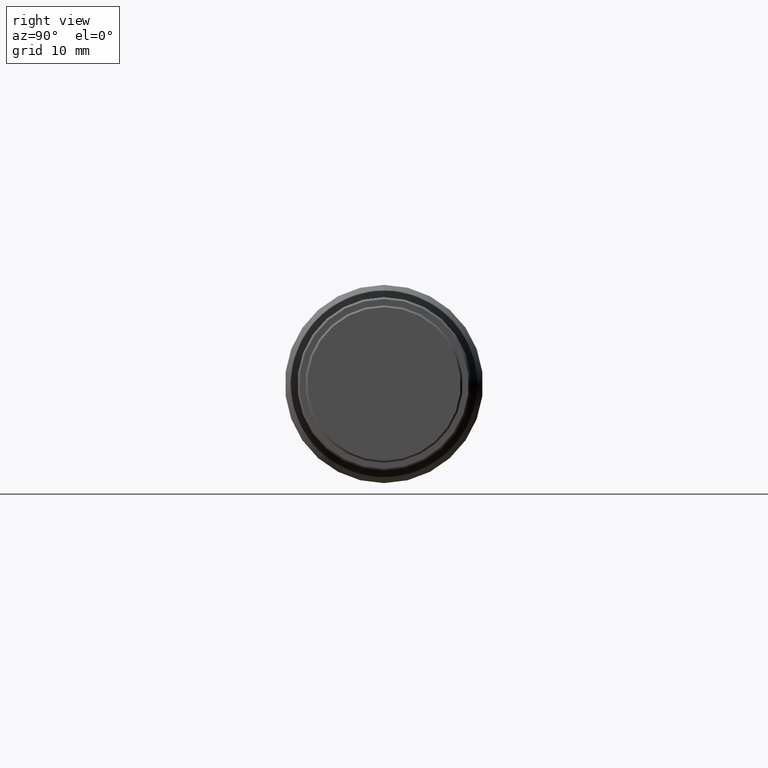
[diagram: clean part render]
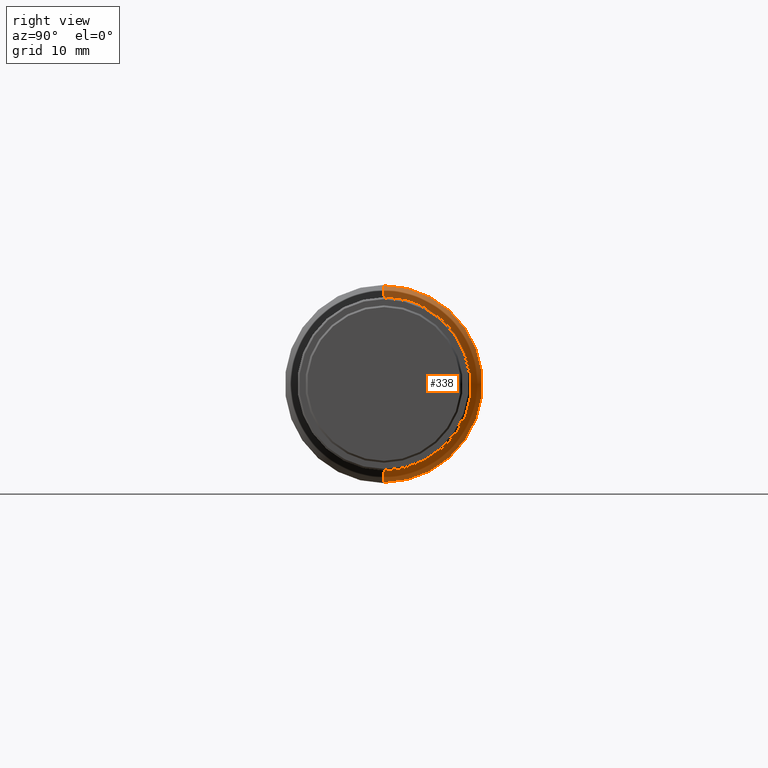
[diagram: same view with one face highlighted and labeled with its STEP entity id]
A machine part, right view. The second image highlights one B-rep face of the part: STEP entity #338.
In plain terms, the highlighted conical surface has half-angle 30 deg.
Its self-contained STEP definition (entity closure, byte-faithful):
#38 = DIRECTION ( 'NONE',  ( -0.8660254037844389300, 6.123233995736761100E-017, -0.4999999999999995600 ) ) ;
#60 = AXIS2_PLACEMENT_3D ( 'NONE', #192, #345, #196 ) ;
#65 = CIRCLE ( 'NONE', #60, 15.86602540378443900 ) ;
#125 = LINE ( 'NONE', #267, #961 ) ;
#166 = ORIENTED_EDGE ( 'NONE', *, *, #765, .T. ) ;
#174 = CARTESIAN_POINT ( 'NONE',  ( 26.89999999999999900, 0.0000000000000000000, 0.0000000000000000000 ) ) ;
#192 = CARTESIAN_POINT ( 'NONE',  ( 23.89999999999999900, 0.0000000000000000000, 0.0000000000000000000 ) ) ;
#196 = DIRECTION ( 'NONE',  ( 0.0000000000000000000, 0.0000000000000000000, 1.000000000000000000 ) ) ;
#202 = VERTEX_POINT ( 'NONE', #463 ) ;
#219 = EDGE_CURVE ( 'NONE', #987, #202, #743, .T. ) ;
#267 = CARTESIAN_POINT ( 'NONE',  ( 26.89999999999999900, 1.730912674848539400E-015, -14.13397459621556300 ) ) ;
#332 = FACE_OUTER_BOUND ( 'NONE', #500, .T. ) ;
#338 = ADVANCED_FACE ( 'NONE', ( #332 ), #750, .T. ) ;
#339 = EDGE_CURVE ( 'NONE', #645, #550, #125, .T. ) ;
#345 = DIRECTION ( 'NONE',  ( -1.000000000000000000, -0.0000000000000000000, -0.0000000000000000000 ) ) ;
#408 = AXIS2_PLACEMENT_3D ( 'NONE', #797, #874, #1020 ) ;
#418 = CARTESIAN_POINT ( 'NONE',  ( 26.89999999999999900, 0.0000000000000000000, 14.13397459621556300 ) ) ;
#420 = DIRECTION ( 'NONE',  ( -1.000000000000000000, -0.0000000000000000000, -0.0000000000000000000 ) ) ;
#422 = ORIENTED_EDGE ( 'NONE', *, *, #219, .F. ) ;
#432 = EDGE_CURVE ( 'NONE', #202, #550, #65, .T. ) ;
#447 = ORIENTED_EDGE ( 'NONE', *, *, #432, .F. ) ;
#463 = CARTESIAN_POINT ( 'NONE',  ( 23.89999999999999900, 0.0000000000000000000, 15.86602540378443900 ) ) ;
#480 = VECTOR ( 'NONE', #644, 1000.000000000000000 ) ;
#484 = AXIS2_PLACEMENT_3D ( 'NONE', #174, #420, #587 ) ;
#500 = EDGE_LOOP ( 'NONE', ( #166, #845, #447, #422 ) ) ;
#526 = CARTESIAN_POINT ( 'NONE',  ( 26.89999999999999900, 0.0000000000000000000, 14.13397459621556300 ) ) ;
#550 = VERTEX_POINT ( 'NONE', #631 ) ;
#587 = DIRECTION ( 'NONE',  ( 0.0000000000000000000, 0.0000000000000000000, 1.000000000000000000 ) ) ;
#631 = CARTESIAN_POINT ( 'NONE',  ( 23.89999999999999900, 1.951231300614642700E-015, -15.86602540378443900 ) ) ;
#644 = DIRECTION ( 'NONE',  ( -0.8660254037844389300, 0.0000000000000000000, 0.4999999999999995600 ) ) ;
#645 = VERTEX_POINT ( 'NONE', #876 ) ;
#743 = LINE ( 'NONE', #418, #480 ) ;
#750 = CONICAL_SURFACE ( 'NONE', #484, 14.13397459621556300, 0.5235987755982983700 ) ;
#765 = EDGE_CURVE ( 'NONE', #987, #645, #986, .T. ) ;
#797 = CARTESIAN_POINT ( 'NONE',  ( 26.89999999999999900, 0.0000000000000000000, 0.0000000000000000000 ) ) ;
#845 = ORIENTED_EDGE ( 'NONE', *, *, #339, .T. ) ;
#874 = DIRECTION ( 'NONE',  ( -1.000000000000000000, -0.0000000000000000000, -0.0000000000000000000 ) ) ;
#876 = CARTESIAN_POINT ( 'NONE',  ( 26.89999999999999900, 1.836970198721030000E-015, -14.13397459621556300 ) ) ;
#961 = VECTOR ( 'NONE', #38, 1000.000000000000000 ) ;
#986 = CIRCLE ( 'NONE', #408, 14.13397459621556300 ) ;
#987 = VERTEX_POINT ( 'NONE', #526 ) ;
#1020 = DIRECTION ( 'NONE',  ( 0.0000000000000000000, 0.0000000000000000000, 1.000000000000000000 ) ) ;